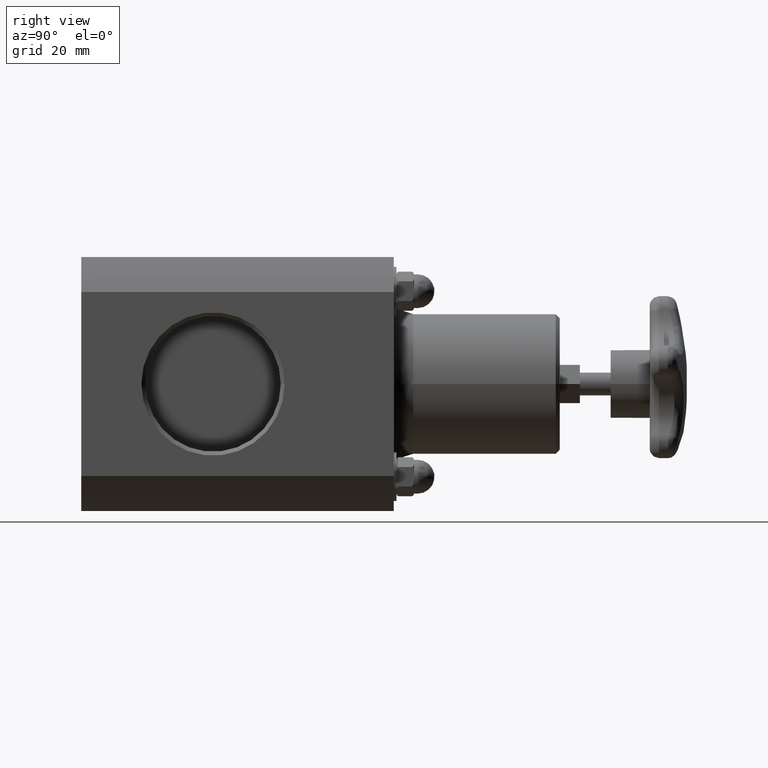
[diagram: clean part render]
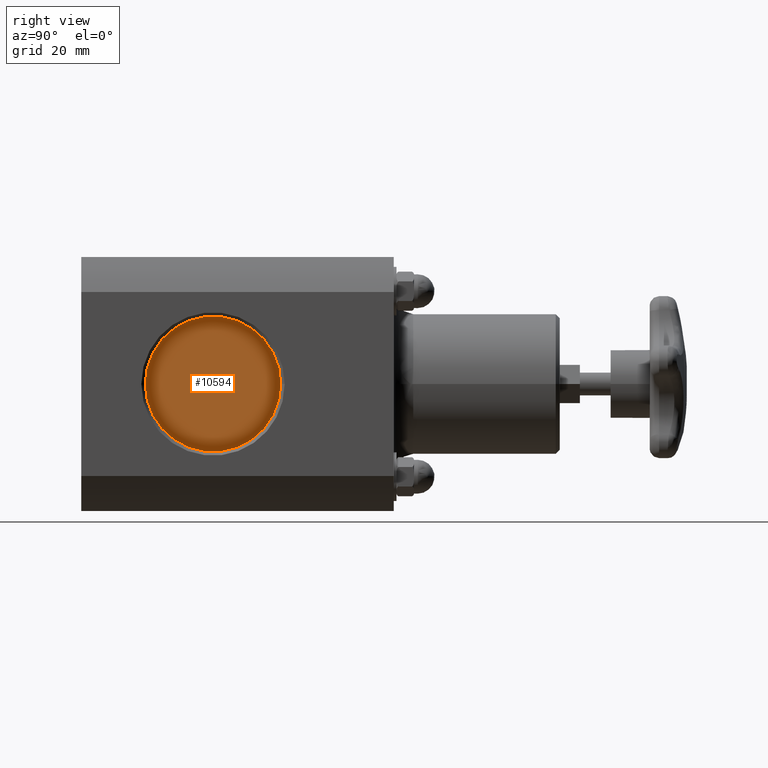
[diagram: same view with one face highlighted and labeled with its STEP entity id]
A machine part, right view. The second image highlights one B-rep face of the part: STEP entity #10594.
In plain terms, the highlighted planar face has unit normal (-1, 0, 0).
Its self-contained STEP definition (entity closure, byte-faithful):
#10445=CARTESIAN_POINT('',(1.162500000000001,2.554187500000001,0.0));
#10446=VERTEX_POINT('',#10445);
#10447=CARTESIAN_POINT('',(1.162500000000001,1.687000000000001,0.0));
#10448=DIRECTION('',(1.0,0.0,0.0));
#10449=DIRECTION('',(0.0,1.0,0.0));
#10450=AXIS2_PLACEMENT_3D('',#10447,#10448,#10449);
#10451=CIRCLE('',#10450,0.867187500000000);
#10452=EDGE_CURVE('',#10446,#10446,#10451,.T.);
#10586=CARTESIAN_POINT('',(1.162500000000001,2.455593750000001,0.0));
#10587=DIRECTION('',(-1.0,0.0,0.0));
#10588=DIRECTION('',(0.0,0.0,1.0));
#10589=AXIS2_PLACEMENT_3D('',#10586,#10587,#10588);
#10590=PLANE('',#10589);
#10591=ORIENTED_EDGE('',*,*,#10452,.T.);
#10592=EDGE_LOOP('',(#10591));
#10593=FACE_OUTER_BOUND('',#10592,.T.);
#10594=ADVANCED_FACE('',(#10593),#10590,.F.);